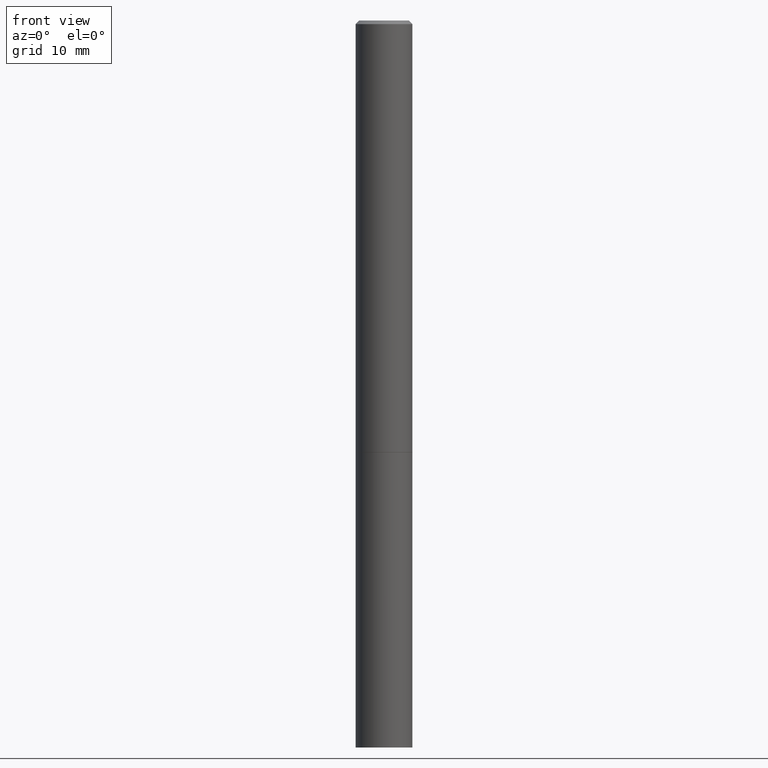
[diagram: clean part render]
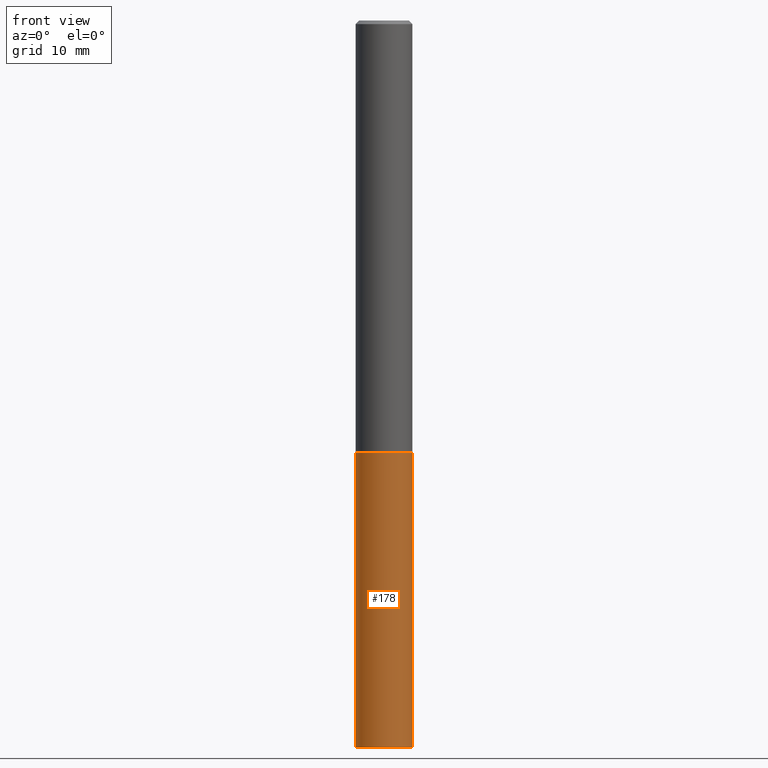
[diagram: same view with one face highlighted and labeled with its STEP entity id]
A machine part, front view. The second image highlights one B-rep face of the part: STEP entity #178.
In plain terms, the highlighted cylindrical surface (edge-blend (fillet) strip) has radius 3.9688 mm, axis along (-0, 0, 1).
Its self-contained STEP definition (entity closure, byte-faithful):
#4 = DIRECTION ( 'NONE',  ( 1.000000000000000000, -6.982962677686266711E-15, 4.876176775795936353E-29 ) ) ;
#8 = EDGE_CURVE ( 'NONE', #151, #136, #236, .T. ) ;
#10 = CARTESIAN_POINT ( 'NONE',  ( -0.1562500000000000000, 1.110223024625156540E-15, -7.685836078523291160E-30 ) ) ;
#48 = ORIENTED_EDGE ( 'NONE', *, *, #277, .F. ) ;
#63 = DIRECTION ( 'NONE',  ( 1.000000000000000000, -6.982962677686262766E-15, 0.000000000000000000 ) ) ;
#70 = CARTESIAN_POINT ( 'NONE',  ( -0.1562499999999997224, -1.287483743698410395E-14, -4.000000000000000000 ) ) ;
#85 = DIRECTION ( 'NONE',  ( -2.445468806185136877E-29, 3.491481338843145188E-15, 1.000000000000000000 ) ) ;
#99 = DIRECTION ( 'NONE',  ( 1.000000000000000000, -6.982962677686262766E-15, 0.000000000000000000 ) ) ;
#102 = VECTOR ( 'NONE', #85, 39.37007874015748143 ) ;
#126 = CARTESIAN_POINT ( 'NONE',  ( 9.781875224740546387E-29, -1.396592535537258233E-14, -4.000000000000000000 ) ) ;
#134 = CARTESIAN_POINT ( 'NONE',  ( -0.1562500000000000000, -1.001887374293736968E-14, -2.375000000000000000 ) ) ;
#136 = VERTEX_POINT ( 'NONE', #183 ) ;
#147 = EDGE_LOOP ( 'NONE', ( #255, #356, #315, #48 ) ) ;
#151 = VERTEX_POINT ( 'NONE', #216 ) ;
#159 = AXIS2_PLACEMENT_3D ( 'NONE', #335, #242, #4 ) ;
#160 = VECTOR ( 'NONE', #282, 39.37007874015748143 ) ;
#161 = LINE ( 'NONE', #10, #160 ) ;
#173 = CARTESIAN_POINT ( 'NONE',  ( 0.1562500000000000000, -1.091087918388479174E-15, 7.619026212181150377E-30 ) ) ;
#178 = ADVANCED_FACE ( 'NONE', ( #333 ), #239, .T. ) ;
#183 = CARTESIAN_POINT ( 'NONE',  ( 0.1562500000000000000, -9.383356098140948502E-15, -2.375000000000000000 ) ) ;
#184 = EDGE_CURVE ( 'NONE', #377, #151, #244, .T. ) ;
#216 = CARTESIAN_POINT ( 'NONE',  ( 0.1562499999999997224, -1.503787816752438098E-14, -4.000000000000000000 ) ) ;
#236 = LINE ( 'NONE', #173, #102 ) ;
#239 = CYLINDRICAL_SURFACE ( 'NONE', #159, 0.1562500000000000000 ) ;
#242 = DIRECTION ( 'NONE',  ( -2.445468806185136597E-29, 3.491481338843145583E-15, 1.000000000000000000 ) ) ;
#244 = CIRCLE ( 'NONE', #379, 0.1562500000000000000 ) ;
#255 = ORIENTED_EDGE ( 'NONE', *, *, #307, .F. ) ;
#277 = EDGE_CURVE ( 'NONE', #327, #136, #331, .T. ) ;
#282 = DIRECTION ( 'NONE',  ( -2.445468806185136877E-29, 3.491481338843145188E-15, 1.000000000000000000 ) ) ;
#287 = CARTESIAN_POINT ( 'NONE',  ( 5.807988414689699417E-29, -8.292268179752470118E-15, -2.375000000000000000 ) ) ;
#306 = DIRECTION ( 'NONE',  ( -2.445468806185136597E-29, 3.491481338843145583E-15, 1.000000000000000000 ) ) ;
#307 = EDGE_CURVE ( 'NONE', #377, #327, #161, .T. ) ;
#313 = DIRECTION ( 'NONE',  ( -2.445468806185136597E-29, 3.491481338843145583E-15, 1.000000000000000000 ) ) ;
#315 = ORIENTED_EDGE ( 'NONE', *, *, #8, .T. ) ;
#327 = VERTEX_POINT ( 'NONE', #134 ) ;
#331 = CIRCLE ( 'NONE', #365, 0.1562500000000000000 ) ;
#333 = FACE_OUTER_BOUND ( 'NONE', #147, .T. ) ;
#335 = CARTESIAN_POINT ( 'NONE',  ( 0.000000000000000000, 0.000000000000000000, 0.000000000000000000 ) ) ;
#356 = ORIENTED_EDGE ( 'NONE', *, *, #184, .T. ) ;
#365 = AXIS2_PLACEMENT_3D ( 'NONE', #287, #313, #99 ) ;
#377 = VERTEX_POINT ( 'NONE', #70 ) ;
#379 = AXIS2_PLACEMENT_3D ( 'NONE', #126, #306, #63 ) ;